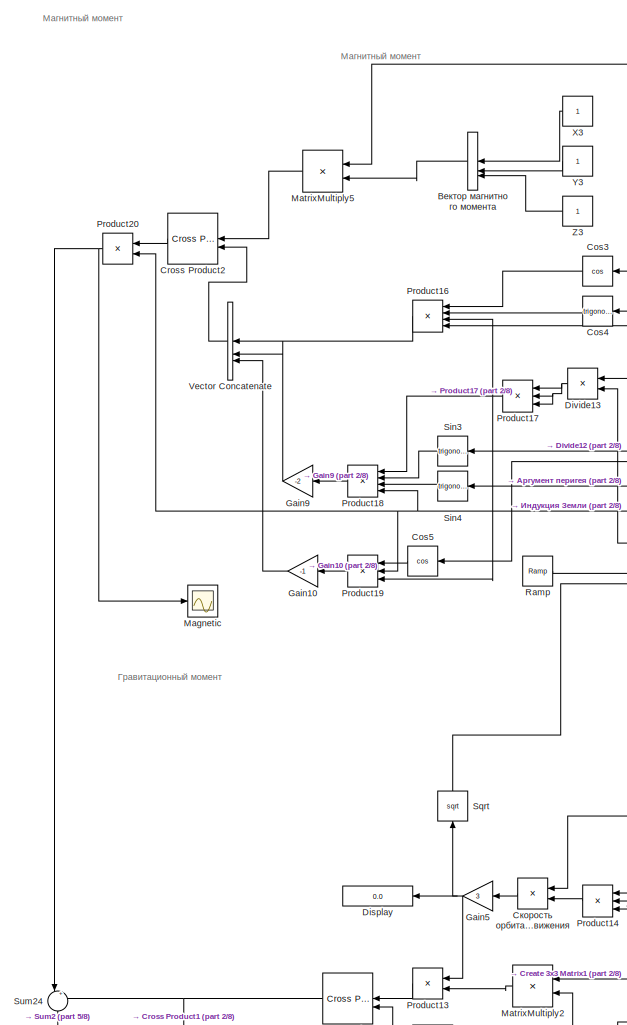
[diagram: root canvas - part 1/8, top left region]
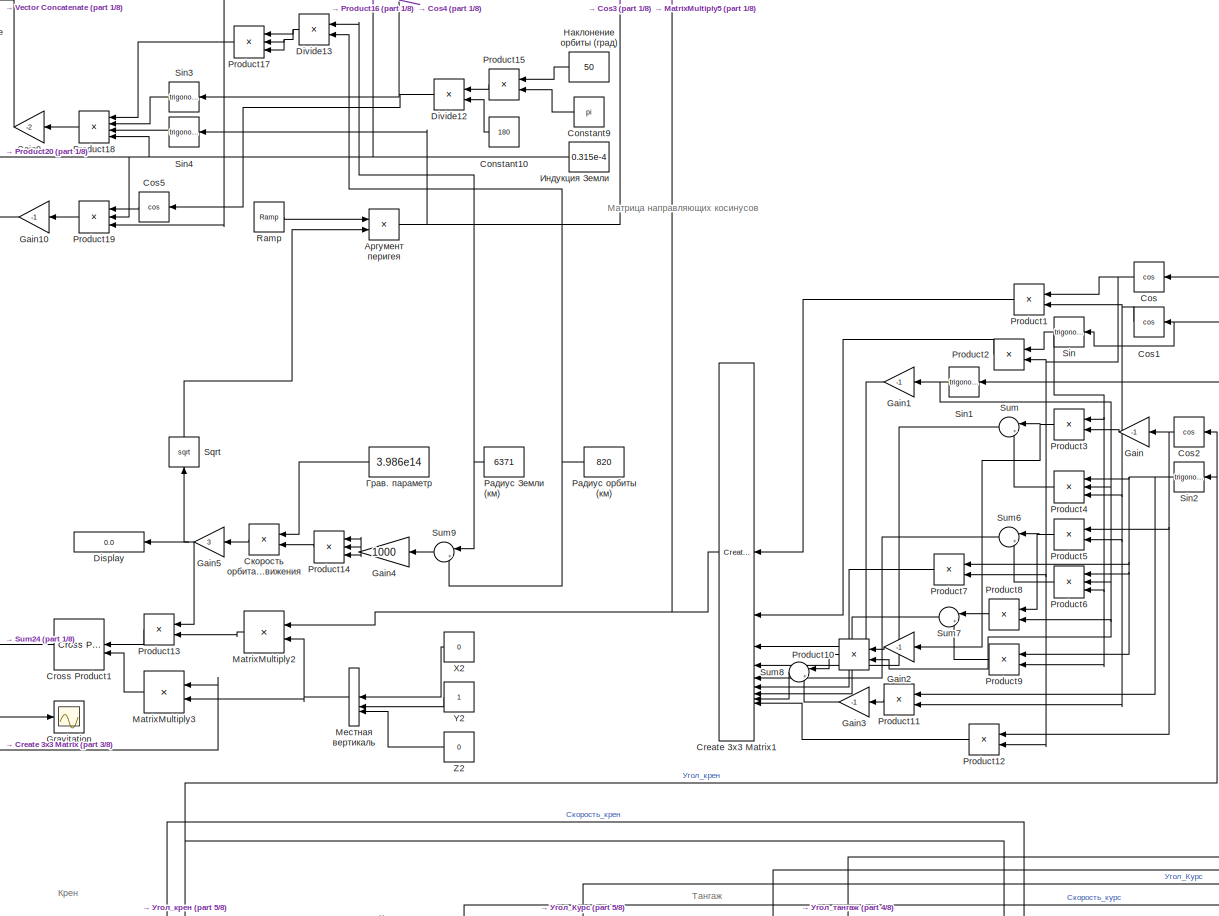
[diagram: root canvas - part 2/8, central region]
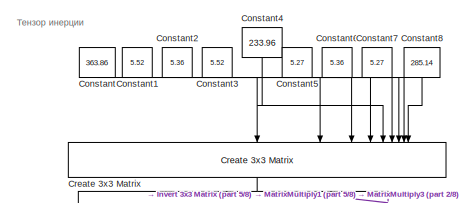
[diagram: root canvas - part 3/8, middle left region]
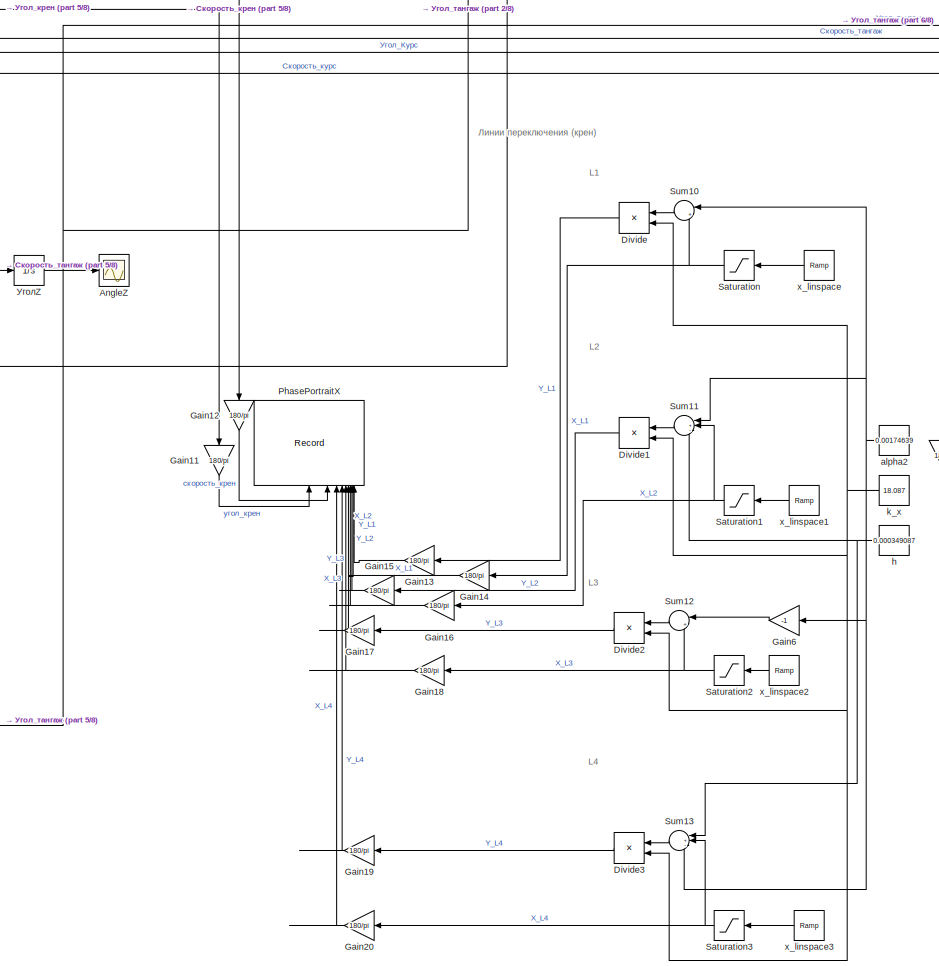
[diagram: root canvas - part 4/8, bottom center region]
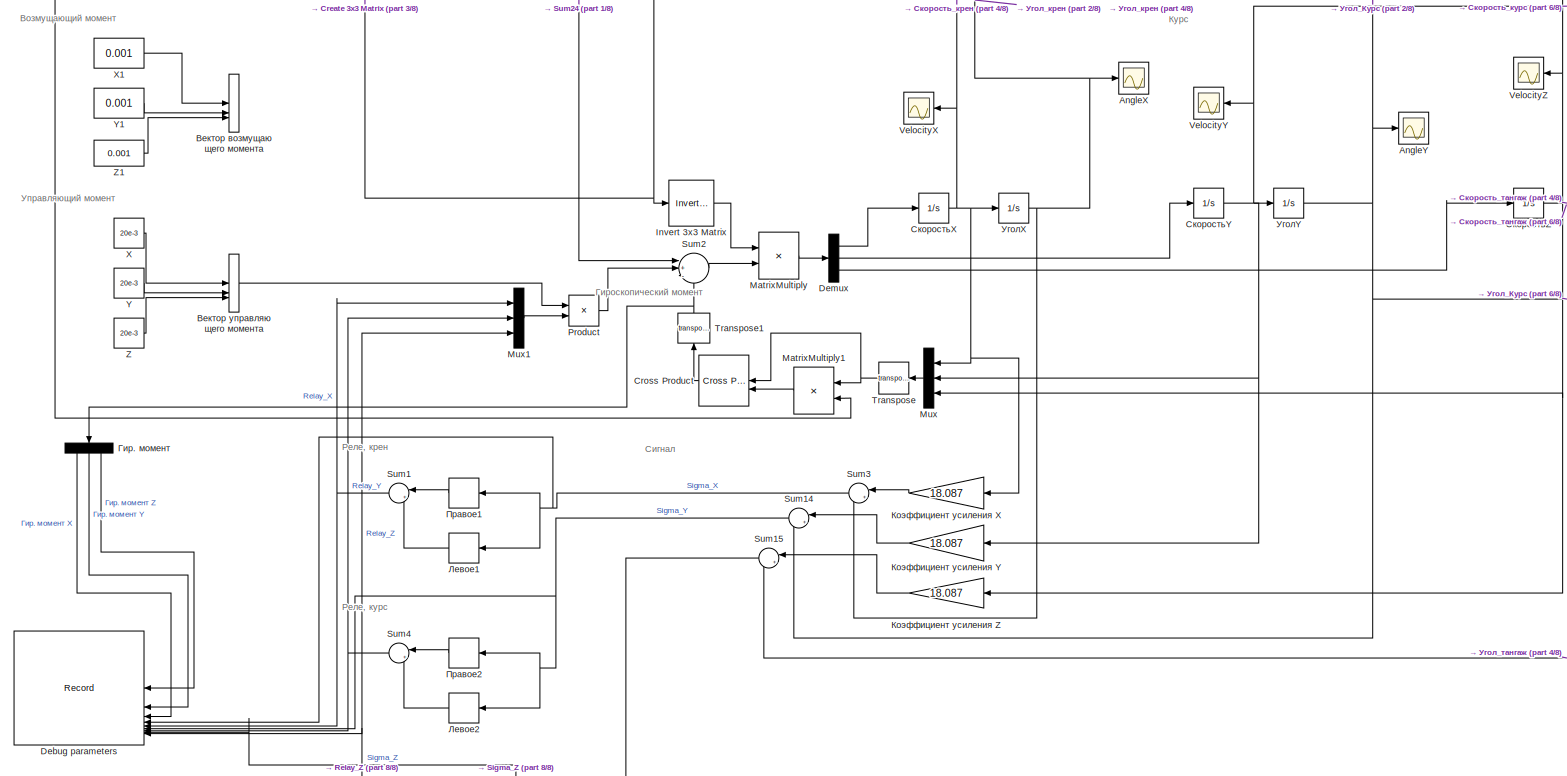
[diagram: root canvas - part 5/8, bottom left region]
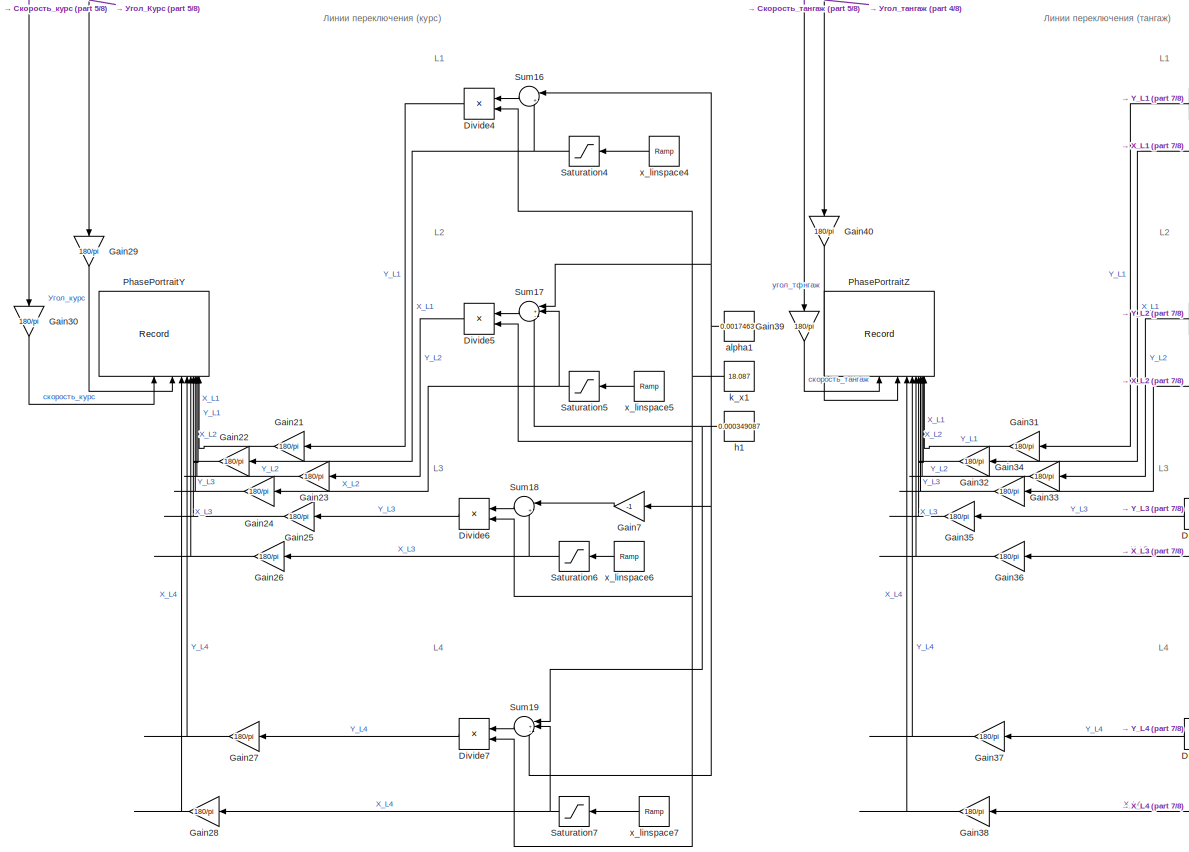
[diagram: root canvas - part 6/8, bottom right region]
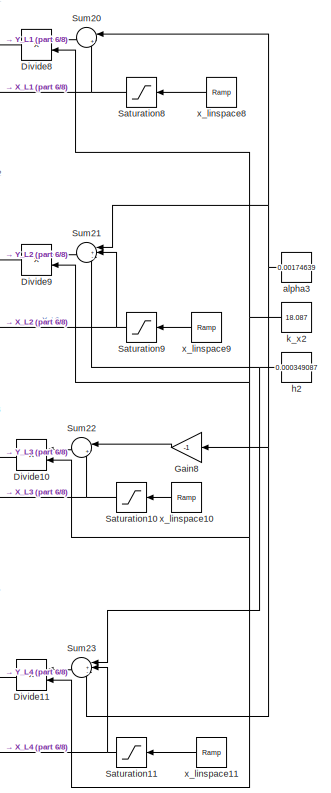
[diagram: root canvas - part 7/8, bottom right region]
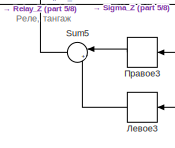
[diagram: root canvas - part 8/8, bottom left region]
MODEL slx_4ecaff5f7213
KIND model
CONFIG AbsTol = 1e-10
CONFIG EnableMultiTasking = off
CONFIG FixedStep = auto
CONFIG MaxStep = auto
CONFIG MinStep = auto
CONFIG RelTol = 1e-9
CONFIG SampleTimeConstraint = Unconstrained
CONFIG SolverName = VariableStepAuto
CONFIG StartTime = 0.0
CONFIG StopTime = 1000
BLOCK [Scope] AngleX
  Floating = off
  NumInputPorts = 1
  ScopeSpecificationString = Simulink.scopes.TimeScopeBlockCfg('CurrentConfiguration', extmgr.ConfigurationSet(extmgr.Configuration('Core','General UI',true),extmgr.Configuration('Core','Source UI',true),extmgr.Configuration('Sources','WiredSimulink',true),extmgr.Configuration('Visuals','Time Domain',true,'SerializedDisplays',{struct('MinYLimReal','-0.11461','MaxYLimReal','0.11221','YLabelReal','','MinYLimMag','0.00000','MaxY...<+1443ch>
BLOCK [Scope] AngleY
  Floating = off
  NumInputPorts = 1
  ScopeSpecificationString = Simulink.scopes.TimeScopeBlockCfg('CurrentConfiguration', extmgr.ConfigurationSet(extmgr.Configuration('Core','General UI',true),extmgr.Configuration('Core','Source UI',true),extmgr.Configuration('Sources','WiredSimulink',true,'DataLoggingVariableName','ScopeData4'),extmgr.Configuration('Visuals','Time Domain',true),extmgr.Configuration('Tools','Plot Navigation',true),extmgr.Configuration('Tools',...<+40ch>
BLOCK [Scope] AngleZ
  Floating = off
  NumInputPorts = 1
  ScopeSpecificationString = Simulink.scopes.TimeScopeBlockCfg('CurrentConfiguration', extmgr.ConfigurationSet(extmgr.Configuration('Core','General UI',true),extmgr.Configuration('Core','Source UI',true),extmgr.Configuration('Sources','WiredSimulink',true,'DataLoggingVariableName','ScopeData6'),extmgr.Configuration('Visuals','Time Domain',true),extmgr.Configuration('Tools','Plot Navigation',true),extmgr.Configuration('Tools',...<+40ch>
BLOCK [Constant] Constant
  NameLocation = left
  Value = 363.86
BLOCK [Constant] Constant1
  NameLocation = left
  Value = 5.52
BLOCK [Constant] Constant10
  NameLocation = top
  Value = 180
BLOCK [Constant] Constant2
  NameLocation = left
  Value = 5.36
BLOCK [Constant] Constant3
  NameLocation = left
  Value = 5.52
BLOCK [Constant] Constant4
  NameLocation = left
  Value = 233.96
BLOCK [Constant] Constant5
  NameLocation = left
  Value = 5.27
BLOCK [Constant] Constant6
  NameLocation = left
  Value = 5.36
BLOCK [Constant] Constant7
  NameLocation = left
  Value = 5.27
BLOCK [Constant] Constant8
  NameLocation = left
  Value = 285.14
BLOCK [Constant] Constant9
  NameLocation = top
  Value = pi
BLOCK [Trigonometry] Cos
  NameLocation = top
  Operator = cos
BLOCK [Trigonometry] Cos1
  NameLocation = top
  Operator = cos
BLOCK [Trigonometry] Cos2
  NameLocation = top
  Operator = cos
BLOCK [Trigonometry] Cos3
  NameLocation = top
  Operator = cos
BLOCK [Trigonometry] Cos4
  NameLocation = top
BLOCK [Trigonometry] Cos5
  NameLocation = top
  Operator = cos
BLOCK [Reference] Create 3x3 Matrix  REF=sharedutil/Create 3x3 Matrix
  LibrarySourceBlock = aerolibutil/Create 3x3 Matrix
  NameLocation = left
  SourceBlock = sharedutil/Create 3x3 Matrix
  SourceType = Create 3x3 Matrix
BLOCK [Reference] Create 3x3 Matrix1  REF=sharedutil/Create 3x3 Matrix
  LibrarySourceBlock = aerolibutil/Create 3x3 Matrix
  NameLocation = top
  SourceBlock = sharedutil/Create 3x3 Matrix
  SourceType = Create 3x3 Matrix
BLOCK [Reference] Cross Product  REF=matrix_library/Cross Product
  LibrarySourceBlock = simulink/Matrix\nOperations/Cross Product
  NameLocation = top
  SourceBlock = matrix_library/Cross Product
  SourceType = CrossProduct
BLOCK [Reference] Cross Product1  REF=matrix_library/Cross Product
  LibrarySourceBlock = simulink/Matrix\nOperations/Cross Product
  NameLocation = top
  SourceBlock = matrix_library/Cross Product
  SourceType = CrossProduct
BLOCK [Reference] Cross Product2  REF=matrix_library/Cross Product
  LibrarySourceBlock = simulink/Matrix\nOperations/Cross Product
  NameLocation = top
  SourceBlock = matrix_library/Cross Product
  SourceType = CrossProduct
BLOCK [Record] Debug parameters
  CompatibilityTag = XY
  FileSettingsInternal = {"entries":[{"content":{"excelSettings":{"content":{},"type":"Streamout.ExcelSettings"}},"type":"Streamout.FileSettingStorage","uuid":""}],"packageUris":["http:\/\/schema.mathworks.com\/mf0\/streamout_blocks\/R2020a"],"version":"1.0"}  <repeated x4 — deduplicated; at blocks: Debug parameters, PhasePortraitX, PhasePortraitY, PhasePortraitZ>
  Layout = [1 1]
  NameLocation = top
  SignalsInternal = {"entries":[{"content":{"signals":[{"content":{"blockPath":[],"dimensions":[1,1],"domain":"","lineColor":"#a2142f","plots":[ 1 ],"port":1,"sid":[""],"signalID":1,"signalName":"Гир. момент Z"},"type":"RecordBlkView.Signal","uuid":""},{"content":{"blockPath":[],"dimensions":[1,1],"domain":"","lineColor":"#139fff","plots":[ 1 ],"port":2,"sid":[""],"signalID":2,"signalName":"Гир. момент Y"},"type":"Re...<+1526ch>
  VisualizationBindings = {"xyplotplugin":{"info":[{"series":[{"bindingParametersList":[{"parameter":"X-Axis","signalID":1,"signalName":"Гир. момент Z"},{"parameter":"Y-Axis","signalID":2,"signalName":"Гир. момент Y"}],"seriesID":0}],"subplotID":1}]}}
BLOCK [Demux] Demux
  Outputs = 3
BLOCK [Display] Display
  Decimation = 1
  NameLocation = top
BLOCK [Product] Divide
  Inputs = */
  NameLocation = top
BLOCK [Product] Divide1
  Inputs = */
  NameLocation = top
BLOCK [Product] Divide10
  Inputs = */
  NameLocation = top
BLOCK [Product] Divide11
  Inputs = */
  NameLocation = top
BLOCK [Product] Divide12
  Inputs = */
  NameLocation = top
BLOCK [Product] Divide13
  Inputs = */
  NameLocation = top
BLOCK [Product] Divide2
  Inputs = */
  NameLocation = top
BLOCK [Product] Divide3
  Inputs = */
  NameLocation = top
BLOCK [Product] Divide4
  Inputs = */
  NameLocation = top
BLOCK [Product] Divide5
  Inputs = */
  NameLocation = top
BLOCK [Product] Divide6
  Inputs = */
  NameLocation = top
BLOCK [Product] Divide7
  Inputs = */
  NameLocation = top
BLOCK [Product] Divide8
  Inputs = */
  NameLocation = top
BLOCK [Product] Divide9
  Inputs = */
  NameLocation = top
BLOCK [Gain] Gain
  Gain = -1
  NameLocation = top
BLOCK [Gain] Gain1
  Gain = -1
  NameLocation = top
BLOCK [Gain] Gain10
  Gain = -1
  NameLocation = top
BLOCK [Gain] Gain11
  Gain = 180/pi
  NameLocation = left
BLOCK [Gain] Gain12
  Gain = 180/pi
  NameLocation = left
BLOCK [Gain] Gain13
  Gain = 180/pi
  NameLocation = top
BLOCK [Gain] Gain14
  Gain = 180/pi
  NameLocation = top
BLOCK [Gain] Gain15
  Gain = 180/pi
  NameLocation = top
BLOCK [Gain] Gain16
  Gain = 180/pi
  NameLocation = top
BLOCK [Gain] Gain17
  Gain = 180/pi
  NameLocation = top
BLOCK [Gain] Gain18
  Gain = 180/pi
  NameLocation = top
BLOCK [Gain] Gain19
  Gain = 180/pi
  NameLocation = top
BLOCK [Gain] Gain2
  Gain = -1
  NameLocation = top
BLOCK [Gain] Gain20
  Gain = 180/pi
  NameLocation = top
BLOCK [Gain] Gain21
  Gain = 180/pi
  NameLocation = top
BLOCK [Gain] Gain22
  Gain = 180/pi
  NameLocation = top
BLOCK [Gain] Gain23
  Gain = 180/pi
  NameLocation = top
BLOCK [Gain] Gain24
  Gain = 180/pi
  NameLocation = top
BLOCK [Gain] Gain25
  Gain = 180/pi
  NameLocation = top
BLOCK [Gain] Gain26
  Gain = 180/pi
  NameLocation = top
BLOCK [Gain] Gain27
  Gain = 180/pi
  NameLocation = top
BLOCK [Gain] Gain28
  Gain = 180/pi
  NameLocation = top
BLOCK [Gain] Gain29
  Gain = 180/pi
  NameLocation = left
BLOCK [Gain] Gain3
  Gain = -1
  NameLocation = top
BLOCK [Gain] Gain30
  Gain = 180/pi
  NameLocation = left
BLOCK [Gain] Gain31
  Gain = 180/pi
  NameLocation = top
BLOCK [Gain] Gain32
  Gain = 180/pi
  NameLocation = top
BLOCK [Gain] Gain33
  Gain = 180/pi
  NameLocation = top
BLOCK [Gain] Gain34
  Gain = 180/pi
  NameLocation = top
BLOCK [Gain] Gain35
  Gain = 180/pi
  NameLocation = top
BLOCK [Gain] Gain36
  Gain = 180/pi
  NameLocation = top
BLOCK [Gain] Gain37
  Gain = 180/pi
  NameLocation = top
BLOCK [Gain] Gain38
  Gain = 180/pi
  NameLocation = top
BLOCK [Gain] Gain39
  Gain = 180/pi
  NameLocation = left
BLOCK [Gain] Gain4
  Gain = 1000
  NameLocation = top
BLOCK [Gain] Gain40
  Gain = 180/pi
  NameLocation = left
BLOCK [Gain] Gain5
  Gain = 3
  NameLocation = top
BLOCK [Gain] Gain6
  Gain = -1
  NameLocation = top
BLOCK [Gain] Gain7
  Gain = -1
  NameLocation = top
BLOCK [Gain] Gain8
  Gain = -1
  NameLocation = top
BLOCK [Gain] Gain9
  Gain = -2
  NameLocation = top
BLOCK [Scope] Gravitation
  Floating = off
  NumInputPorts = 1
  ScopeSpecificationString = Simulink.scopes.TimeScopeBlockCfg('CurrentConfiguration', extmgr.ConfigurationSet(extmgr.Configuration('Core','General UI',true),extmgr.Configuration('Core','Source UI',true),extmgr.Configuration('Sources','WiredSimulink',true,'DataLoggingVariableName','ScopeData3'),extmgr.Configuration('Visuals','Time Domain',true,'SerializedDisplays',{struct('MinYLimReal','-0.00011','MaxYLimReal','0.00011','YLab...<+1531ch>
BLOCK [Reference] Invert 3x3 Matrix  REF=aerolibutil/Invert 
3x3 Matrix
  SourceBlock = aerolibutil/Invert \n3x3 Matrix
  SourceType = Invert 3x3 Matrix
BLOCK [Scope] Magnetic
  Floating = off
  NumInputPorts = 1
  ScopeSpecificationString = Simulink.scopes.TimeScopeBlockCfg('CurrentConfiguration', extmgr.ConfigurationSet(extmgr.Configuration('Core','General UI',true),extmgr.Configuration('Core','Source UI',true),extmgr.Configuration('Sources','WiredSimulink',true,'DataLoggingVariableName','ScopeData1'),extmgr.Configuration('Visuals','Time Domain',true,'SerializedDisplays',{struct('MinYLimReal','-0.0000013','MaxYLimReal','0.0000011','...<+1532ch>
BLOCK [Product] MatrixMultiply
  Multiplication = Matrix(*)
BLOCK [Product] MatrixMultiply1
  Multiplication = Matrix(*)
  NameLocation = top
BLOCK [Product] MatrixMultiply2
  Multiplication = Matrix(*)
  NameLocation = top
BLOCK [Product] MatrixMultiply3
  Multiplication = Matrix(*)
  NameLocation = top
BLOCK [Product] MatrixMultiply5
  Multiplication = Matrix(*)
  NameLocation = top
BLOCK [Mux] Mux
  DisplayOption = bar
  Inputs = 3
  NameLocation = top
BLOCK [Mux] Mux1
  DisplayOption = bar
  Inputs = 3
BLOCK [Record] PhasePortraitX
  CompatibilityTag = XY
  Layout = [1 1]
  NameLocation = right
  SignalsInternal = {"entries":[{"content":{"signals":[{"content":{"blockPath":[],"dimensions":[1,1],"domain":"","lineColor":"#139fff","lineWidth":2,"port":1,"sid":[""],"signalID":1,"signalName":"угол_крен"},"type":"RecordBlkView.Signal","uuid":""},{"content":{"blockPath":[],"dimensions":[1,1],"domain":"","lineColor":"#ff6929","lineWidth":2,"port":2,"sid":[""],"signalID":2,"signalName":"скорость_крен"},"type":"Record...<+1670ch>
  VisualizationBindings = {"xyplotplugin":{"info":[{"series":[],"subplotID":1}]}}
BLOCK [Record] PhasePortraitY
  CompatibilityTag = XY
  Layout = [1 1]
  NameLocation = right
  SignalsInternal = {"entries":[{"content":{"signals":[{"content":{"blockPath":[],"dimensions":[1,1],"domain":"","lineColor":"#7e2f8e","lineWidth":2,"port":1,"sid":[""],"signalID":1,"signalName":"скорость_курс"},"type":"RecordBlkView.Signal","uuid":""},{"content":{"blockPath":[],"dimensions":[1,1],"domain":"","lineColor":"#77ac30","lineWidth":2,"port":2,"sid":[""],"signalID":2,"signalName":"Угол_курс"},"type":"Record...<+1670ch>
  VisualizationBindings = {"xyplotplugin":{"info":[{"series":[],"subplotID":1}]}}
BLOCK [Record] PhasePortraitZ
  CompatibilityTag = XY
  Layout = [1 1]
  NameLocation = right
  SignalsInternal = {"entries":[{"content":{"signals":[{"content":{"blockPath":[],"dimensions":[1,1],"domain":"","lineColor":"#22b573","lineWidth":2,"plots":[ 1 ],"port":1,"sid":[""],"signalID":1,"signalName":"скорость_тангаж"},"type":"RecordBlkView.Signal","uuid":""},{"content":{"blockPath":[],"dimensions":[1,1],"domain":"","lineColor":"#7e2f8e","lineWidth":2,"plots":[ 1 ],"port":2,"sid":[""],"signalID":2,"signalNam...<+1702ch>
  VisualizationBindings = {"xyplotplugin":{"info":[{"series":[{"bindingParametersList":[{"parameter":"X-Axis","signalID":1,"signalName":"скорость_тангаж"},{"parameter":"Y-Axis","signalID":2,"signalName":"угол_тфнгаж"}],"seriesID":0}],"subplotID":1}]}}
BLOCK [Product] Product
BLOCK [Product] Product1
  NameLocation = top
BLOCK [Product] Product10
  NameLocation = top
BLOCK [Product] Product11
  NameLocation = top
BLOCK [Product] Product12
  NameLocation = top
BLOCK [Product] Product13
  NameLocation = top
BLOCK [Product] Product14
  Inputs = 3
  NameLocation = top
BLOCK [Product] Product15
  NameLocation = top
BLOCK [Product] Product16
  Inputs = 4
  NameLocation = top
BLOCK [Product] Product17
  Inputs = 3
  NameLocation = top
BLOCK [Product] Product18
  Inputs = 4
  NameLocation = top
BLOCK [Product] Product19
  Inputs = 3
  NameLocation = top
BLOCK [Product] Product2
  NameLocation = top
BLOCK [Product] Product20
  NameLocation = top
BLOCK [Product] Product3
  NameLocation = top
BLOCK [Product] Product4
  Inputs = 3
  NameLocation = top
BLOCK [Product] Product5
  NameLocation = top
BLOCK [Product] Product6
  Inputs = 3
  NameLocation = top
BLOCK [Product] Product7
  NameLocation = top
BLOCK [Product] Product8
  NameLocation = top
BLOCK [Product] Product9
  NameLocation = top
BLOCK [Reference] Ramp  REF=simulink/Sources/Ramp
  SourceBlock = simulink/Sources/Ramp
  SourceType = Ramp
BLOCK [Saturate] Saturation
  LowerLimit = -0.15
  NameLocation = top
  UpperLimit = 0.15
BLOCK [Saturate] Saturation1
  LowerLimit = -0.15
  NameLocation = top
  UpperLimit = 0.15
BLOCK [Saturate] Saturation10
  LowerLimit = -0.15
  NameLocation = top
  UpperLimit = 0.15
BLOCK [Saturate] Saturation11
  LowerLimit = -0.15
  NameLocation = top
  UpperLimit = 0.15
BLOCK [Saturate] Saturation2
  LowerLimit = -0.15
  NameLocation = top
  UpperLimit = 0.15
BLOCK [Saturate] Saturation3
  LowerLimit = -0.15
  NameLocation = top
  UpperLimit = 0.15
BLOCK [Saturate] Saturation4
  LowerLimit = -0.15
  NameLocation = top
  UpperLimit = 0.15
BLOCK [Saturate] Saturation5
  LowerLimit = -0.15
  NameLocation = top
  UpperLimit = 0.15
BLOCK [Saturate] Saturation6
  LowerLimit = -0.15
  NameLocation = top
  UpperLimit = 0.15
BLOCK [Saturate] Saturation7
  LowerLimit = -0.15
  NameLocation = top
  UpperLimit = 0.15
BLOCK [Saturate] Saturation8
  LowerLimit = -0.15
  NameLocation = top
  UpperLimit = 0.15
BLOCK [Saturate] Saturation9
  LowerLimit = -0.15
  NameLocation = top
  UpperLimit = 0.15
BLOCK [Trigonometry] Sin
  NameLocation = top
BLOCK [Trigonometry] Sin1
  NameLocation = top
BLOCK [Trigonometry] Sin2
  NameLocation = top
BLOCK [Trigonometry] Sin3
  NameLocation = top
BLOCK [Trigonometry] Sin4
  NameLocation = top
BLOCK [Sqrt] Sqrt
  NameLocation = right
BLOCK [Sum] Sum
  Inputs = |++
  NameLocation = top
BLOCK [Sum] Sum1
  Inputs = |++
  NameLocation = top
BLOCK [Sum] Sum10
  Inputs = |+-
  NameLocation = top
BLOCK [Sum] Sum11
  Inputs = |+--
  NameLocation = top
BLOCK [Sum] Sum12
  Inputs = |+-
  NameLocation = top
BLOCK [Sum] Sum13
  Inputs = |+--
  NameLocation = top
BLOCK [Sum] Sum14
  Inputs = |++
  NameLocation = top
BLOCK [Sum] Sum15
  Inputs = |++
  NameLocation = top
BLOCK [Sum] Sum16
  Inputs = |+-
  NameLocation = top
BLOCK [Sum] Sum17
  Inputs = |+--
  NameLocation = top
BLOCK [Sum] Sum18
  Inputs = |+-
  NameLocation = top
BLOCK [Sum] Sum19
  Inputs = |+--
  NameLocation = top
BLOCK [Sum] Sum2
  Inputs = |+-+
BLOCK [Sum] Sum20
  Inputs = |+-
  NameLocation = top
BLOCK [Sum] Sum21
  Inputs = |+--
  NameLocation = top
BLOCK [Sum] Sum22
  Inputs = |+-
  NameLocation = top
BLOCK [Sum] Sum23
  Inputs = |+--
  NameLocation = top
BLOCK [Sum] Sum24
  Inputs = |++
  NameLocation = left
BLOCK [Sum] Sum3
  Inputs = |++
  NameLocation = top
BLOCK [Sum] Sum4
  Inputs = |++
  NameLocation = top
BLOCK [Sum] Sum5
  Inputs = |++
  NameLocation = top
BLOCK [Sum] Sum6
  Inputs = |++
  NameLocation = top
BLOCK [Sum] Sum7
  Inputs = |++
  NameLocation = top
BLOCK [Sum] Sum8
  Inputs = |++
  NameLocation = top
BLOCK [Sum] Sum9
  Inputs = |++
  NameLocation = top
BLOCK [Math] Transpose
  NameLocation = top
  Operator = transpose
BLOCK [Math] Transpose1
  NameLocation = right
  Operator = transpose
BLOCK [Concatenate] Vector Concatenate
  NameLocation = top
  NumInputs = 3
BLOCK [Scope] VelocityX
  Floating = off
  NameLocation = top
  NumInputPorts = 1
  ScopeSpecificationString = Simulink.scopes.TimeScopeBlockCfg('CurrentConfiguration', extmgr.ConfigurationSet(extmgr.Configuration('Core','General UI',true),extmgr.Configuration('Core','Source UI',true),extmgr.Configuration('Sources','WiredSimulink',true,'DataLoggingVariableName','ScopeData1'),extmgr.Configuration('Visuals','Time Domain',true,'SerializedDisplays',{struct('MinYLimReal','-0.00124','MaxYLimReal','0.00166','YLab...<+1487ch>
BLOCK [Scope] VelocityY
  Floating = off
  NameLocation = top
  NumInputPorts = 1
  ScopeSpecificationString = Simulink.scopes.TimeScopeBlockCfg('CurrentConfiguration', extmgr.ConfigurationSet(extmgr.Configuration('Core','General UI',true),extmgr.Configuration('Core','Source UI',true),extmgr.Configuration('Sources','WiredSimulink',true,'DataLoggingVariableName','ScopeData5'),extmgr.Configuration('Visuals','Time Domain',true,'SerializedDisplays',{struct('MinYLimReal','-0.00159','MaxYLimReal','0.00166','YLab...<+1456ch>
BLOCK [Scope] VelocityZ
  Floating = off
  NameLocation = top
  NumInputPorts = 1
  ScopeSpecificationString = Simulink.scopes.TimeScopeBlockCfg('CurrentConfiguration', extmgr.ConfigurationSet(extmgr.Configuration('Core','General UI',true),extmgr.Configuration('Core','Source UI',true),extmgr.Configuration('Sources','WiredSimulink',true,'DataLoggingVariableName','ScopeData7'),extmgr.Configuration('Visuals','Time Domain',true,'SerializedDisplays',{struct('MinYLimReal','-0.00159','MaxYLimReal','0.00166','YLab...<+1456ch>
BLOCK [Constant] X
  Value = 20e-3
BLOCK [Constant] X1
  Value = 0.001
BLOCK [Constant] X2
  NameLocation = top
  Value = 0
BLOCK [Constant] X3
  NameLocation = top
BLOCK [Constant] Y
  Value = 20e-3
BLOCK [Constant] Y1
  Value = 0.001
BLOCK [Constant] Y2
  NameLocation = top
BLOCK [Constant] Y3
  NameLocation = top
BLOCK [Constant] Z
  Value = 20e-3
BLOCK [Constant] Z1
  Value = 0.001
BLOCK [Constant] Z2
  NameLocation = top
  Value = 0
BLOCK [Constant] Z3
  NameLocation = top
BLOCK [Constant] alpha1
  NameLocation = top
  Value = 0.00174639
BLOCK [Constant] alpha2
  NameLocation = top
  Value = 0.00174639
BLOCK [Constant] alpha3
  NameLocation = top
  Value = 0.00174639
BLOCK [Constant] h
  NameLocation = top
  Value = 0.000349087
BLOCK [Constant] h1
  NameLocation = top
  Value = 0.000349087
BLOCK [Constant] h2
  NameLocation = top
  Value = 0.000349087
BLOCK [Constant] k_x
  NameLocation = top
  Value = 18.087
BLOCK [Constant] k_x1
  NameLocation = top
  Value = 18.087
BLOCK [Constant] k_x2
  NameLocation = top
  Value = 18.087
BLOCK [Reference] x_linspace  REF=simulink/Sources/Ramp
  NameLocation = top
  SourceBlock = simulink/Sources/Ramp
  SourceType = Ramp
BLOCK [Reference] x_linspace1  REF=simulink/Sources/Ramp
  NameLocation = top
  SourceBlock = simulink/Sources/Ramp
  SourceType = Ramp
BLOCK [Reference] x_linspace10  REF=simulink/Sources/Ramp
  NameLocation = top
  SourceBlock = simulink/Sources/Ramp
  SourceType = Ramp
BLOCK [Reference] x_linspace11  REF=simulink/Sources/Ramp
  NameLocation = top
  SourceBlock = simulink/Sources/Ramp
  SourceType = Ramp
BLOCK [Reference] x_linspace2  REF=simulink/Sources/Ramp
  NameLocation = top
  SourceBlock = simulink/Sources/Ramp
  SourceType = Ramp
BLOCK [Reference] x_linspace3  REF=simulink/Sources/Ramp
  NameLocation = top
  SourceBlock = simulink/Sources/Ramp
  SourceType = Ramp
BLOCK [Reference] x_linspace4  REF=simulink/Sources/Ramp
  NameLocation = top
  SourceBlock = simulink/Sources/Ramp
  SourceType = Ramp
BLOCK [Reference] x_linspace5  REF=simulink/Sources/Ramp
  NameLocation = top
  SourceBlock = simulink/Sources/Ramp
  SourceType = Ramp
BLOCK [Reference] x_linspace6  REF=simulink/Sources/Ramp
  NameLocation = top
  SourceBlock = simulink/Sources/Ramp
  SourceType = Ramp
BLOCK [Reference] x_linspace7  REF=simulink/Sources/Ramp
  NameLocation = top
  SourceBlock = simulink/Sources/Ramp
  SourceType = Ramp
BLOCK [Reference] x_linspace8  REF=simulink/Sources/Ramp
  NameLocation = top
  SourceBlock = simulink/Sources/Ramp
  SourceType = Ramp
BLOCK [Reference] x_linspace9  REF=simulink/Sources/Ramp
  NameLocation = top
  SourceBlock = simulink/Sources/Ramp
  SourceType = Ramp
BLOCK [Product] Аргумент перигея
BLOCK [Concatenate] Вектор возмущающего момента
  NumInputs = 3
BLOCK [Concatenate] Вектор магнитного момента
  NameLocation = top
  NumInputs = 3
BLOCK [Concatenate] Вектор управляющего момента
  NumInputs = 3
BLOCK [Demux] Гир. момент
  NameLocation = left
  Outputs = 3
BLOCK [Constant] Грав. параметр
  NameLocation = top
  Value = 3.986e14
BLOCK [Constant] Индукция Земли
  NameLocation = top
  Value = 0.315e-4
BLOCK [Gain] Коэффициент усиления X
  Gain = 18.087
  NameLocation = top
BLOCK [Gain] Коэффициент усиления Y
  Gain = 18.087
  NameLocation = top
BLOCK [Gain] Коэффициент усиления Z
  Gain = 18.087
  NameLocation = top
BLOCK [Relay] Левое1
  NameLocation = top
  OffOutputValue = -1
  OffSwitchValue = -0.00174639
  OnOutputValue = 0
  OnSwitchValue = -0.00174639+0.000349087
BLOCK [Relay] Левое2
  NameLocation = top
  OffOutputValue = -1
  OffSwitchValue = -0.00174639
  OnOutputValue = 0
  OnSwitchValue = -0.00174639+0.000349087
BLOCK [Relay] Левое3
  NameLocation = top
  OffOutputValue = -1
  OffSwitchValue = -0.00174639
  OnOutputValue = 0
  OnSwitchValue = -0.00174639+0.000349087
BLOCK [Concatenate] Местная вертикаль
  NameLocation = top
  NumInputs = 3
BLOCK [Constant] Наклонение орбиты (град)
  NameLocation = top
  Value = 50
BLOCK [Relay] Правое1
  NameLocation = top
  OffSwitchValue = 0.00174639-0.000349087
  OnSwitchValue = 0.00174639
BLOCK [Relay] Правое2
  NameLocation = top
  OffSwitchValue = 0.00174639-0.000349087
  OnSwitchValue = 0.00174639
BLOCK [Relay] Правое3
  NameLocation = top
  OffSwitchValue = 0.00174639-0.000349087
  OnSwitchValue = 0.00174639
BLOCK [Constant] Радиус Земли (км)
  NameLocation = top
  Value = 6371
BLOCK [Constant] Радиус орбиты (км)
  NameLocation = top
  Value = 820
BLOCK [Product] Скорость орбитального движения
  Inputs = */
  NameLocation = top
BLOCK [Integrator] СкоростьX
  InitialCondition = 1.39626e-5
BLOCK [Integrator] СкоростьY
  InitialCondition = 1.39626e-5
BLOCK [Integrator] СкоростьZ
  InitialCondition = 1.39626e-5
BLOCK [Integrator] УголX
BLOCK [Integrator] УголY
BLOCK [Integrator] УголZ
ANNOTATION (root): L1
ANNOTATION (root): L2
ANNOTATION (root): L3
ANNOTATION (root): L4
ANNOTATION (root): Возмущающий момент
ANNOTATION (root): Гироскопический момент
ANNOTATION (root): Гравитационный момент
ANNOTATION (root): Крен
ANNOTATION (root): Курс
ANNOTATION (root): Линии переключения (крен)
ANNOTATION (root): Линии переключения (курс)
ANNOTATION (root): Линии переключения (тангаж)
ANNOTATION (root): Магнитный момент
ANNOTATION (root): Матрица направляющих косинусов
ANNOTATION (root): Реле, крен
ANNOTATION (root): Реле, курс
ANNOTATION (root): Реле, тангаж
ANNOTATION (root): Сигнал
ANNOTATION (root): Тангаж
ANNOTATION (root): Тензор инерции
ANNOTATION (root): Управляющий момент
LINE Constant10:1 -> Divide12:2
LINE Constant1:1 -> Create 3x3 Matrix:2
LINE Constant2:1 -> Create 3x3 Matrix:3
LINE Constant3:1 -> Create 3x3 Matrix:4
LINE Constant4:1 -> Create 3x3 Matrix:5
LINE Constant5:1 -> Create 3x3 Matrix:6
LINE Constant6:1 -> Create 3x3 Matrix:7
LINE Constant7:1 -> Create 3x3 Matrix:8
LINE Constant8:1 -> Create 3x3 Matrix:9
LINE Constant9:1 -> Product15:2
LINE Constant:1 -> Create 3x3 Matrix:1
NET Cos1:1 -> Product11:2, Product1:2, Product4:3, Product5:2
NET Cos2:1 -> Gain:1, Product12:1, Product5:1
LINE Cos3:1 -> Product16:1
LINE Cos4:1 -> Product16:2
LINE Cos5:1 -> Product19:1
NET Cos:1 -> Product12:2, Product1:1, Product2:2, Product7:2
NET Create 3x3 Matrix1:1 -> MatrixMultiply2:1, MatrixMultiply5:1
NET Create 3x3 Matrix:1 -> Invert 3x3 Matrix:1, MatrixMultiply1:2, MatrixMultiply3:1
NET Cross Product1:1 -> Gravitation:1, Sum24:2
LINE Cross Product2:1 -> Product20:1
LINE Cross Product:1 -> Transpose1:1
LINE Demux:1 -> СкоростьX:1
LINE Demux:2 -> СкоростьY:1
LINE Demux:3 -> СкоростьZ:1
LINE Divide10:1 -> Gain35:1
LINE Divide11:1 -> Gain37:1
NET Divide12:1 -> Cos4:1, Cos5:1, Sin3:1
NET Divide13:1 -> Product17:1, Product17:2, Product17:3
LINE Divide1:1 -> Gain15:1
LINE Divide2:1 -> Gain17:1
LINE Divide3:1 -> Gain19:1
LINE Divide4:1 -> Gain21:1
LINE Divide5:1 -> Gain23:1
LINE Divide6:1 -> Gain25:1
LINE Divide7:1 -> Gain27:1
LINE Divide8:1 -> Gain31:1
LINE Divide9:1 -> Gain33:1
LINE Divide:1 -> Gain13:1
LINE Gain10:1 -> Vector Concatenate:3
LINE Gain11:1 -> PhasePortraitX:1
LINE Gain12:1 -> PhasePortraitX:2
LINE Gain13:1 -> PhasePortraitX:10
LINE Gain14:1 -> PhasePortraitX:9
LINE Gain15:1 -> PhasePortraitX:8
LINE Gain16:1 -> PhasePortraitX:7
LINE Gain17:1 -> PhasePortraitX:6
LINE Gain18:1 -> PhasePortraitX:5
LINE Gain19:1 -> PhasePortraitX:4
LINE Gain1:1 -> Create 3x3 Matrix1:3
LINE Gain20:1 -> PhasePortraitX:3
LINE Gain21:1 -> PhasePortraitY:10
LINE Gain22:1 -> PhasePortraitY:9
LINE Gain23:1 -> PhasePortraitY:8
LINE Gain24:1 -> PhasePortraitY:7
LINE Gain25:1 -> PhasePortraitY:6
LINE Gain26:1 -> PhasePortraitY:5
LINE Gain27:1 -> PhasePortraitY:4
LINE Gain28:1 -> PhasePortraitY:3
LINE Gain29:1 -> PhasePortraitY:2
LINE Gain2:1 -> Product10:1
LINE Gain30:1 -> PhasePortraitY:1
LINE Gain31:1 -> PhasePortraitZ:10
LINE Gain32:1 -> PhasePortraitZ:9
LINE Gain33:1 -> PhasePortraitZ:8
LINE Gain34:1 -> PhasePortraitZ:7
LINE Gain35:1 -> PhasePortraitZ:6
LINE Gain36:1 -> PhasePortraitZ:5
LINE Gain37:1 -> PhasePortraitZ:4
LINE Gain38:1 -> PhasePortraitZ:3
LINE Gain39:1 -> PhasePortraitZ:1
LINE Gain3:1 -> Sum8:2
LINE Gain40:1 -> PhasePortraitZ:2
NET Gain4:1 -> Product14:1, Product14:2, Product14:3
NET Gain5:1 -> Display:1, Product13:1, Sqrt:1
LINE Gain6:1 -> Sum12:1
LINE Gain7:1 -> Sum18:1
LINE Gain8:1 -> Sum22:1
LINE Gain9:1 -> Vector Concatenate:2
LINE Gain:1 -> Product3:2
LINE Invert 3x3 Matrix:1 -> MatrixMultiply:1
LINE MatrixMultiply1:1 -> Cross Product:2
LINE MatrixMultiply2:1 -> Product13:2
LINE MatrixMultiply3:1 -> Cross Product1:2
LINE MatrixMultiply5:1 -> Cross Product2:1
LINE MatrixMultiply:1 -> Demux:1
LINE Mux1:1 -> Product:2
LINE Mux:1 -> Transpose:1
LINE Product10:1 -> Sum8:1
LINE Product11:1 -> Gain3:1
LINE Product12:1 -> Create 3x3 Matrix1:9
LINE Product13:1 -> Cross Product1:1
LINE Product14:1 -> Скорость орбитального движения:2
LINE Product15:1 -> Divide12:1
LINE Product16:1 -> Vector Concatenate:1
NET Product17:1 -> Product16:3, Product18:1, Product19:3
LINE Product18:1 -> Gain9:1
LINE Product19:1 -> Gain10:1
LINE Product1:1 -> Create 3x3 Matrix1:1
NET Product20:1 -> Magnetic:1, Sum24:1
LINE Product2:1 -> Create 3x3 Matrix1:2
NET Product3:1 -> Gain2:1, Sum:1
LINE Product4:1 -> Sum:2
NET Product5:1 -> Product8:1, Sum6:1
LINE Product6:1 -> Sum6:2
LINE Product7:1 -> Create 3x3 Matrix1:6
LINE Product8:1 -> Sum7:1
LINE Product9:1 -> Sum7:2
LINE Product:1 -> Sum2:2
LINE Ramp:1 -> Аргумент перигея:1
NET Saturation10:1 -> Gain36:1, Sum22:2
NET Saturation11:1 -> Gain38:1, Sum23:2
NET Saturation1:1 -> Gain16:1, Sum11:2
NET Saturation2:1 -> Gain18:1, Sum12:2
NET Saturation3:1 -> Gain20:1, Sum13:2
NET Saturation4:1 -> Gain22:1, Sum16:2
NET Saturation5:1 -> Gain24:1, Sum17:2
NET Saturation6:1 -> Gain26:1, Sum18:2
NET Saturation7:1 -> Gain28:1, Sum19:2
NET Saturation8:1 -> Gain32:1, Sum20:2
NET Saturation9:1 -> Gain34:1, Sum21:2
NET Saturation:1 -> Gain14:1, Sum10:2
NET Sin1:1 -> Gain1:1, Product10:2, Product4:2, Product6:2, Product8:2
NET Sin2:1 -> Product11:1, Product4:1, Product6:1, Product7:1, Product9:1
LINE Sin3:1 -> Product18:2
LINE Sin4:1 -> Product18:3
NET Sin:1 -> Product2:1, Product3:1, Product6:3, Product9:2
LINE Sqrt:1 -> Аргумент перигея:2
LINE Sum10:1 -> Divide:1
LINE Sum11:1 -> Divide1:1
LINE Sum12:1 -> Divide2:1
LINE Sum13:1 -> Divide3:1
NET Sum14:1 -> Debug parameters:6, Левое2:1, Правое2:1
NET Sum15:1 -> Debug parameters:8, Левое3:1, Правое3:1
LINE Sum16:1 -> Divide4:1
LINE Sum17:1 -> Divide5:1
LINE Sum18:1 -> Divide6:1
LINE Sum19:1 -> Divide7:1
NET Sum1:1 -> Debug parameters:5, Mux1:1
LINE Sum20:1 -> Divide8:1
LINE Sum21:1 -> Divide9:1
LINE Sum22:1 -> Divide10:1
LINE Sum23:1 -> Divide11:1
LINE Sum24:1 -> Sum2:1
LINE Sum2:1 -> MatrixMultiply:2
NET Sum3:1 -> Debug parameters:4, Левое1:1, Правое1:1
NET Sum4:1 -> Debug parameters:7, Mux1:2
NET Sum5:1 -> Debug parameters:9, Mux1:3
LINE Sum6:1 -> Create 3x3 Matrix1:5
LINE Sum7:1 -> Create 3x3 Matrix1:7
LINE Sum8:1 -> Create 3x3 Matrix1:8
LINE Sum9:1 -> Gain4:1
LINE Sum:1 -> Create 3x3 Matrix1:4
NET Transpose1:1 -> Sum2:3, Гир. момент:1
NET Transpose:1 -> Cross Product:1, MatrixMultiply1:1
LINE Vector Concatenate:1 -> Cross Product2:2
LINE X1:1 -> Вектор возмущающего момента:1
LINE X2:1 -> Местная вертикаль:1
LINE X3:1 -> Вектор магнитного момента:1
LINE X:1 -> Вектор управляющего момента:1
LINE Y1:1 -> Вектор возмущающего момента:2
LINE Y2:1 -> Местная вертикаль:2
LINE Y3:1 -> Вектор магнитного момента:2
LINE Y:1 -> Вектор управляющего момента:2
LINE Z1:1 -> Вектор возмущающего момента:3
LINE Z2:1 -> Местная вертикаль:3
LINE Z3:1 -> Вектор магнитного момента:3
LINE Z:1 -> Вектор управляющего момента:3
NET alpha1:1 -> Gain7:1, Sum16:1, Sum17:1, Sum19:3
NET alpha2:1 -> Gain6:1, Sum10:1, Sum11:1, Sum13:3
NET alpha3:1 -> Gain8:1, Sum20:1, Sum21:1, Sum23:3
NET h1:1 -> Sum17:3, Sum19:1
NET h2:1 -> Sum21:3, Sum23:1
NET h:1 -> Sum11:3, Sum13:1
NET k_x1:1 -> Divide4:2, Divide5:2, Divide6:2, Divide7:2
NET k_x2:1 -> Divide10:2, Divide11:2, Divide8:2, Divide9:2
NET k_x:1 -> Divide1:2, Divide2:2, Divide3:2, Divide:2
LINE x_linspace10:1 -> Saturation10:1
LINE x_linspace11:1 -> Saturation11:1
LINE x_linspace1:1 -> Saturation1:1
LINE x_linspace2:1 -> Saturation2:1
LINE x_linspace3:1 -> Saturation3:1
LINE x_linspace4:1 -> Saturation4:1
LINE x_linspace5:1 -> Saturation5:1
LINE x_linspace6:1 -> Saturation6:1
LINE x_linspace7:1 -> Saturation7:1
LINE x_linspace8:1 -> Saturation8:1
LINE x_linspace9:1 -> Saturation9:1
LINE x_linspace:1 -> Saturation:1
NET Аргумент перигея:1 -> Cos3:1, Sin4:1
LINE Вектор магнитного момента:1 -> MatrixMultiply5:2
LINE Вектор управляющего момента:1 -> Product:1
LINE Гир. момент:1 -> Debug parameters:3
LINE Гир. момент:2 -> Debug parameters:2
LINE Гир. момент:3 -> Debug parameters:1
LINE Грав. параметр:1 -> Скорость орбитального движения:1
NET Индукция Земли:1 -> Product16:4, Product18:4, Product19:2, Product20:2
LINE Коэффициент усиления X:1 -> Sum3:1
LINE Коэффициент усиления Y:1 -> Sum14:1
LINE Коэффициент усиления Z:1 -> Sum15:1
LINE Левое1:1 -> Sum1:2
LINE Левое2:1 -> Sum4:2
LINE Левое3:1 -> Sum5:2
NET Местная вертикаль:1 -> MatrixMultiply2:2, MatrixMultiply3:2
LINE Наклонение орбиты (град):1 -> Product15:1
LINE Правое1:1 -> Sum1:1
LINE Правое2:1 -> Sum4:1
LINE Правое3:1 -> Sum5:1
NET Радиус Земли (км):1 -> Divide13:1, Sum9:1
NET Радиус орбиты (км):1 -> Divide13:2, Sum9:2
LINE Скорость орбитального движения:1 -> Gain5:1
NET СкоростьX:1 -> Gain12:1, Mux:1, VelocityX:1, Коэффициент усиления X:1, УголX:1
NET СкоростьY:1 -> Gain30:1, Mux:2, VelocityY:1, Коэффициент усиления Y:1, УголY:1
NET СкоростьZ:1 -> Gain39:1, Mux:3, VelocityZ:1, Коэффициент усиления Z:1, УголZ:1
NET УголX:1 -> AngleX:1, Cos2:1, Gain11:1, Sin2:1, Sum3:2
NET УголY:1 -> AngleY:1, Cos:1, Gain29:1, Sin1:1, Sum14:2
NET УголZ:1 -> AngleZ:1, Cos1:1, Gain40:1, Sin:1, Sum15:2
note: NET lines group one-source signal fan-out (src -> all destinations, sorted); 1:1 wires keep LINE
